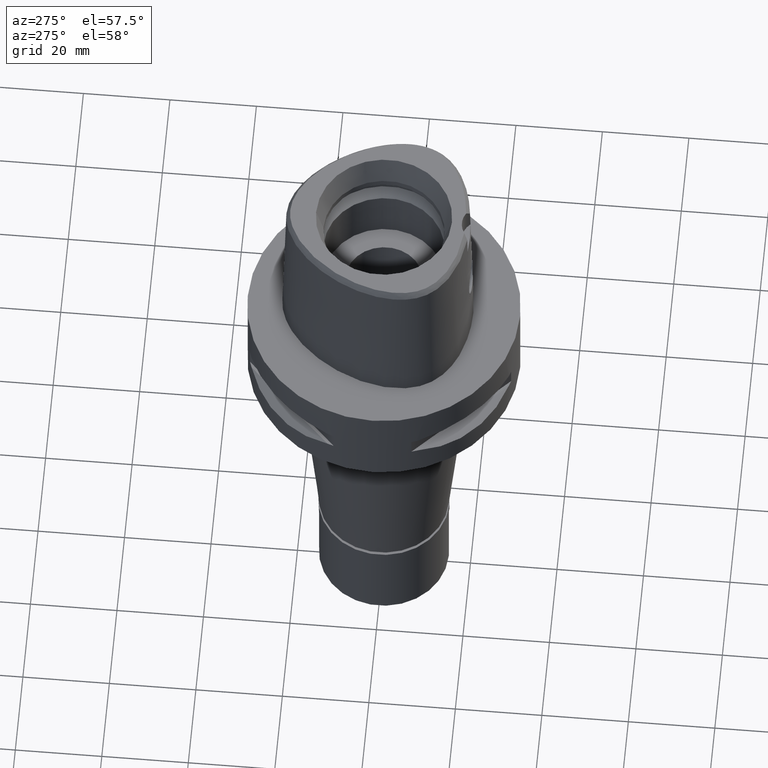
[diagram: clean part render]
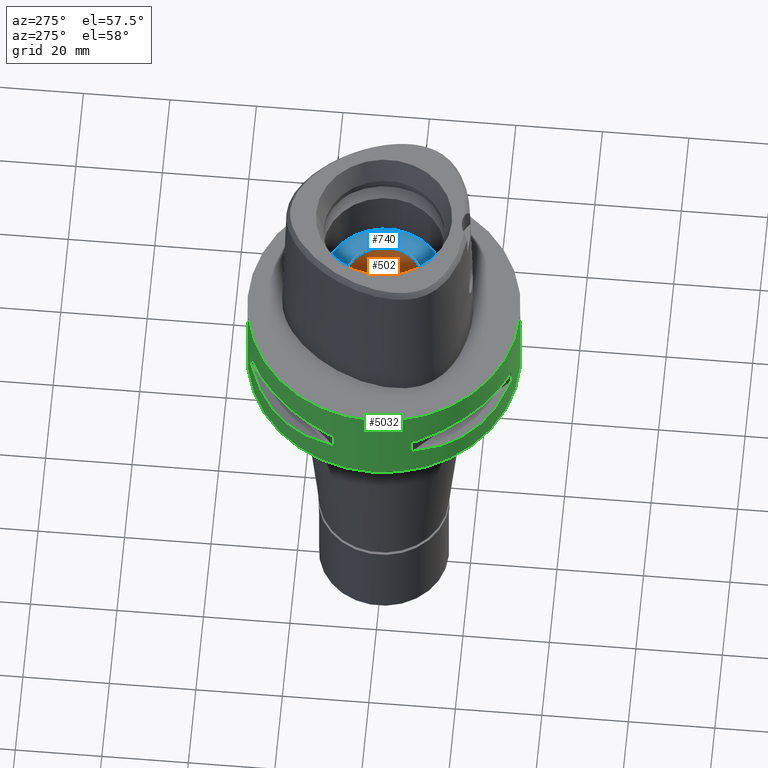
[diagram: same view with three faces highlighted in distinct colors, each labeled with its STEP entity id]
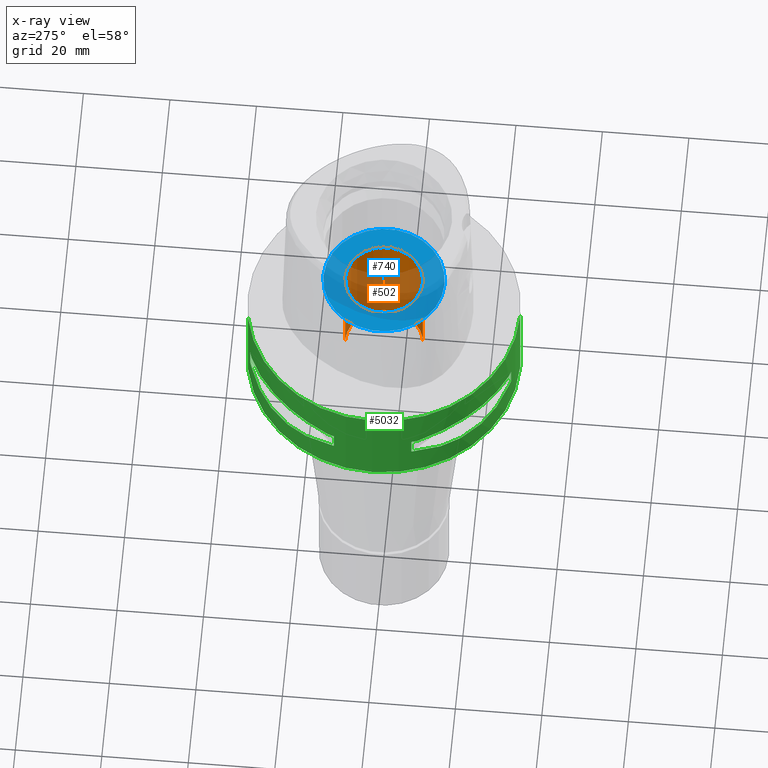
[diagram: x-ray of the same camera — body ghosted, the three highlighted faces saturated]
A machine part, auxiliary view with three faces highlighted in distinct colors.
The next image is the same camera in x-ray (body ghosted, the three faces saturated) — at least one of them is partly hidden behind the body in this view.
Their STEP definitions:

[orange] entity #502 — the highlighted cylindrical surface (partial cylindrical patch) has radius 9 mm, axis along (0, 0, -1).
#109 = EDGE_CURVE ( 'NONE', #375, #1393, #4360, .T. ) ;
#202 = CARTESIAN_POINT ( 'NONE',  ( 0.0000000000000000000, 0.0000000000000000000, 11.00000000000000000 ) ) ;
#315 = CARTESIAN_POINT ( 'NONE',  ( 0.0000000000000000000, 9.000000000000000000, 11.00000000000000000 ) ) ;
#375 = VERTEX_POINT ( 'NONE', #3069 ) ;
#502 = ADVANCED_FACE ( 'NONE', ( #4716 ), #1223, .F. ) ;
#642 = CIRCLE ( 'NONE', #1623, 9.000000000000000000 ) ;
#826 = DIRECTION ( 'NONE',  ( 0.0000000000000000000, -1.000000000000000000, 0.0000000000000000000 ) ) ;
#921 = VERTEX_POINT ( 'NONE', #1347 ) ;
#1010 = EDGE_CURVE ( 'NONE', #921, #4207, #1809, .T. ) ;
#1067 = DIRECTION ( 'NONE',  ( 0.0000000000000000000, 1.000000000000000000, 0.0000000000000000000 ) ) ;
#1223 = CYLINDRICAL_SURFACE ( 'NONE', #2659, 9.000000000000000000 ) ;
#1291 = VECTOR ( 'NONE', #2315, 1000.000000000000000 ) ;
#1343 = DIRECTION ( 'NONE',  ( 0.0000000000000000000, -1.000000000000000000, 0.0000000000000000000 ) ) ;
#1347 = CARTESIAN_POINT ( 'NONE',  ( 0.0000000000000000000, -9.000000000000000000, 11.00000000000000000 ) ) ;
#1393 = VERTEX_POINT ( 'NONE', #315 ) ;
#1623 = AXIS2_PLACEMENT_3D ( 'NONE', #1742, #2520, #1067 ) ;
#1735 = EDGE_CURVE ( 'NONE', #375, #4207, #642, .T. ) ;
#1742 = CARTESIAN_POINT ( 'NONE',  ( 0.0000000000000000000, 0.0000000000000000000, -16.00000000000000000 ) ) ;
#1756 = DIRECTION ( 'NONE',  ( 0.0000000000000000000, 0.0000000000000000000, 1.000000000000000000 ) ) ;
#1809 = LINE ( 'NONE', #3355, #2663 ) ;
#2102 = EDGE_LOOP ( 'NONE', ( #3231, #4526, #3614, #4425 ) ) ;
#2124 = CIRCLE ( 'NONE', #3629, 9.000000000000000000 ) ;
#2315 = DIRECTION ( 'NONE',  ( 0.0000000000000000000, 0.0000000000000000000, 1.000000000000000000 ) ) ;
#2520 = DIRECTION ( 'NONE',  ( 0.0000000000000000000, 0.0000000000000000000, -1.000000000000000000 ) ) ;
#2659 = AXIS2_PLACEMENT_3D ( 'NONE', #2763, #4331, #826 ) ;
#2663 = VECTOR ( 'NONE', #5039, 1000.000000000000000 ) ;
#2763 = CARTESIAN_POINT ( 'NONE',  ( 0.0000000000000000000, 0.0000000000000000000, 39.89999999999999858 ) ) ;
#3069 = CARTESIAN_POINT ( 'NONE',  ( 0.0000000000000000000, 9.000000000000000000, -16.00000000000000000 ) ) ;
#3099 = CARTESIAN_POINT ( 'NONE',  ( 0.0000000000000000000, 9.000000000000000000, -16.00000000000000000 ) ) ;
#3231 = ORIENTED_EDGE ( 'NONE', *, *, #4664, .T. ) ;
#3355 = CARTESIAN_POINT ( 'NONE',  ( 0.0000000000000000000, -9.000000000000000000, 11.00000000000000000 ) ) ;
#3614 = ORIENTED_EDGE ( 'NONE', *, *, #1735, .T. ) ;
#3629 = AXIS2_PLACEMENT_3D ( 'NONE', #202, #1756, #1343 ) ;
#4207 = VERTEX_POINT ( 'NONE', #4284 ) ;
#4284 = CARTESIAN_POINT ( 'NONE',  ( 0.0000000000000000000, -9.000000000000000000, -16.00000000000000000 ) ) ;
#4331 = DIRECTION ( 'NONE',  ( 0.0000000000000000000, 0.0000000000000000000, -1.000000000000000000 ) ) ;
#4360 = LINE ( 'NONE', #3099, #1291 ) ;
#4425 = ORIENTED_EDGE ( 'NONE', *, *, #1010, .F. ) ;
#4526 = ORIENTED_EDGE ( 'NONE', *, *, #109, .F. ) ;
#4664 = EDGE_CURVE ( 'NONE', #921, #1393, #2124, .T. ) ;
#4716 = FACE_OUTER_BOUND ( 'NONE', #2102, .T. ) ;
#5039 = DIRECTION ( 'NONE',  ( 0.0000000000000000000, 0.0000000000000000000, -1.000000000000000000 ) ) ;

[blue] entity #740 — the highlighted planar face has unit normal (0, 0, -1).
#51 = AXIS2_PLACEMENT_3D ( 'NONE', #2139, #1704, #1323 ) ;
#91 = ORIENTED_EDGE ( 'NONE', *, *, #2798, .F. ) ;
#202 = CARTESIAN_POINT ( 'NONE',  ( 0.0000000000000000000, 0.0000000000000000000, 11.00000000000000000 ) ) ;
#315 = CARTESIAN_POINT ( 'NONE',  ( 0.0000000000000000000, 9.000000000000000000, 11.00000000000000000 ) ) ;
#322 = EDGE_LOOP ( 'NONE', ( #91, #4742 ) ) ;
#341 = ORIENTED_EDGE ( 'NONE', *, *, #4664, .F. ) ;
#360 = DIRECTION ( 'NONE',  ( 0.0000000000000000000, 1.000000000000000000, 0.0000000000000000000 ) ) ;
#400 = CARTESIAN_POINT ( 'NONE',  ( 0.0000000000000000000, -14.00000000000000000, 11.00000000000000000 ) ) ;
#740 = ADVANCED_FACE ( 'NONE', ( #4462, #1375 ), #1423, .F. ) ;
#921 = VERTEX_POINT ( 'NONE', #1347 ) ;
#1027 = EDGE_LOOP ( 'NONE', ( #341, #4017 ) ) ;
#1084 = CARTESIAN_POINT ( 'NONE',  ( 0.0000000000000000000, 14.00000000000000000, 11.00000000000000000 ) ) ;
#1323 = DIRECTION ( 'NONE',  ( 0.0000000000000000000, -1.000000000000000000, 0.0000000000000000000 ) ) ;
#1340 = DIRECTION ( 'NONE',  ( 0.0000000000000000000, -1.000000000000000000, 0.0000000000000000000 ) ) ;
#1343 = DIRECTION ( 'NONE',  ( 0.0000000000000000000, -1.000000000000000000, 0.0000000000000000000 ) ) ;
#1347 = CARTESIAN_POINT ( 'NONE',  ( 0.0000000000000000000, -9.000000000000000000, 11.00000000000000000 ) ) ;
#1375 = FACE_BOUND ( 'NONE', #1027, .T. ) ;
#1393 = VERTEX_POINT ( 'NONE', #315 ) ;
#1412 = EDGE_CURVE ( 'NONE', #2737, #4189, #4484, .T. ) ;
#1423 = PLANE ( 'NONE',  #51 ) ;
#1704 = DIRECTION ( 'NONE',  ( 0.0000000000000000000, 0.0000000000000000000, -1.000000000000000000 ) ) ;
#1756 = DIRECTION ( 'NONE',  ( 0.0000000000000000000, 0.0000000000000000000, 1.000000000000000000 ) ) ;
#1804 = CIRCLE ( 'NONE', #5055, 14.00000000000000000 ) ;
#1857 = CARTESIAN_POINT ( 'NONE',  ( 0.0000000000000000000, 0.0000000000000000000, 11.00000000000000000 ) ) ;
#2019 = AXIS2_PLACEMENT_3D ( 'NONE', #3869, #4687, #360 ) ;
#2124 = CIRCLE ( 'NONE', #3629, 9.000000000000000000 ) ;
#2126 = CIRCLE ( 'NONE', #4713, 9.000000000000000000 ) ;
#2139 = CARTESIAN_POINT ( 'NONE',  ( 0.0000000000000000000, 0.0000000000000000000, 11.00000000000000000 ) ) ;
#2737 = VERTEX_POINT ( 'NONE', #1084 ) ;
#2798 = EDGE_CURVE ( 'NONE', #4189, #2737, #1804, .T. ) ;
#3025 = DIRECTION ( 'NONE',  ( 0.0000000000000000000, 0.0000000000000000000, 1.000000000000000000 ) ) ;
#3095 = DIRECTION ( 'NONE',  ( 0.0000000000000000000, 1.000000000000000000, 0.0000000000000000000 ) ) ;
#3343 = EDGE_CURVE ( 'NONE', #1393, #921, #2126, .T. ) ;
#3629 = AXIS2_PLACEMENT_3D ( 'NONE', #202, #1756, #1343 ) ;
#3738 = CARTESIAN_POINT ( 'NONE',  ( 0.0000000000000000000, 0.0000000000000000000, 11.00000000000000000 ) ) ;
#3869 = CARTESIAN_POINT ( 'NONE',  ( 0.0000000000000000000, 0.0000000000000000000, 11.00000000000000000 ) ) ;
#4017 = ORIENTED_EDGE ( 'NONE', *, *, #3343, .F. ) ;
#4189 = VERTEX_POINT ( 'NONE', #400 ) ;
#4462 = FACE_OUTER_BOUND ( 'NONE', #322, .T. ) ;
#4484 = CIRCLE ( 'NONE', #2019, 14.00000000000000000 ) ;
#4664 = EDGE_CURVE ( 'NONE', #921, #1393, #2124, .T. ) ;
#4687 = DIRECTION ( 'NONE',  ( 0.0000000000000000000, 0.0000000000000000000, -1.000000000000000000 ) ) ;
#4713 = AXIS2_PLACEMENT_3D ( 'NONE', #1857, #3025, #3095 ) ;
#4742 = ORIENTED_EDGE ( 'NONE', *, *, #1412, .F. ) ;
#4814 = DIRECTION ( 'NONE',  ( 0.0000000000000000000, 0.0000000000000000000, -1.000000000000000000 ) ) ;
#5055 = AXIS2_PLACEMENT_3D ( 'NONE', #3738, #4814, #1340 ) ;

[green] entity #5032 — the highlighted cylindrical surface (partial cylindrical patch) has radius 31.5 mm, axis along (0, 0, -1).
#10 = CARTESIAN_POINT ( 'NONE',  ( -20.18579225686149314, -24.23018836745477245, -15.78559396979075125 ) ) ;
#18 = CARTESIAN_POINT ( 'NONE',  ( -25.43927894891815811, 18.59229662064788258, -15.62866126334327710 ) ) ;
#47 = DIRECTION ( 'NONE',  ( 0.0000000000000000000, 0.0000000000000000000, -1.000000000000000000 ) ) ;
#50 = AXIS2_PLACEMENT_3D ( 'NONE', #3271, #2181, #176 ) ;
#95 = CARTESIAN_POINT ( 'NONE',  ( 0.0000000000000000000, 0.0000000000000000000, 0.0000000000000000000 ) ) ;
#131 = VECTOR ( 'NONE', #636, 1000.000000000000000 ) ;
#139 = VECTOR ( 'NONE', #4001, 1000.000000000000000 ) ;
#176 = DIRECTION ( 'NONE',  ( -0.3316748332540863653, -0.9433937698468619626, 0.0000000000000000000 ) ) ;
#197 = VERTEX_POINT ( 'NONE', #3954 ) ;
#209 = DIRECTION ( 'NONE',  ( 0.0000000000000000000, 0.0000000000000000000, 1.000000000000000000 ) ) ;
#248 = EDGE_CURVE ( 'NONE', #1753, #4398, #4186, .T. ) ;
#328 = CARTESIAN_POINT ( 'NONE',  ( -8.981198972019999616, 30.19251670572000279, -9.950000000000001066 ) ) ;
#346 = CARTESIAN_POINT ( 'NONE',  ( -21.46242677078074834, -23.08532645888130830, -15.83938991065315172 ) ) ;
#350 = CARTESIAN_POINT ( 'NONE',  ( -10.44775724750000023, 29.71690375017999841, -14.05000000000000071 ) ) ;
#373 = CARTESIAN_POINT ( 'NONE',  ( -26.58330558444475145, -16.89910283486517528, -15.40446471307230070 ) ) ;
#383 = AXIS2_PLACEMENT_3D ( 'NONE', #3301, #1404, #2866 ) ;
#384 = CARTESIAN_POINT ( 'NONE',  ( -27.88210502977326755, 14.84430321591229074, -8.906184731931707788 ) ) ;
#403 = ORIENTED_EDGE ( 'NONE', *, *, #1530, .F. ) ;
#464 = EDGE_CURVE ( 'NONE', #1253, #3027, #3330, .T. ) ;
#477 = ORIENTED_EDGE ( 'NONE', *, *, #1015, .T. ) ;
#486 = ORIENTED_EDGE ( 'NONE', *, *, #1839, .T. ) ;
#493 = CARTESIAN_POINT ( 'NONE',  ( -10.44775724750000023, 29.71690375017999841, -14.05000000000000071 ) ) ;
#578 = DIRECTION ( 'NONE',  ( -0.9584925938322735872, -0.2851174276831918153, 0.0000000000000000000 ) ) ;
#589 = ORIENTED_EDGE ( 'NONE', *, *, #2254, .T. ) ;
#617 = AXIS2_PLACEMENT_3D ( 'NONE', #4661, #4196, #1087 ) ;
#629 = CARTESIAN_POINT ( 'NONE',  ( 0.0000000000000000000, 0.0000000000000000000, -14.05000000000000071 ) ) ;
#636 = DIRECTION ( 'NONE',  ( 0.0000000000000000000, 0.0000000000000000000, -1.000000000000000000 ) ) ;
#661 = ORIENTED_EDGE ( 'NONE', *, *, #2030, .T. ) ;
#719 = CARTESIAN_POINT ( 'NONE',  ( -23.90617837140505841, 20.64154884334742590, -8.160613588441446353 ) ) ;
#722 = CARTESIAN_POINT ( 'NONE',  ( 0.0000000000000000000, 0.0000000000000000000, -14.05000000000000071 ) ) ;
#749 = CARTESIAN_POINT ( 'NONE',  ( -30.19251670572000279, 8.981198972017999438, -14.05000000000000071 ) ) ;
#758 = CARTESIAN_POINT ( 'NONE',  ( -10.44775724750000023, -29.71690375017999841, -9.949999999998999201 ) ) ;
#780 = CARTESIAN_POINT ( 'NONE',  ( -26.84474411198545596, -16.48208282229538213, -15.34094883778132790 ) ) ;
#788 = CARTESIAN_POINT ( 'NONE',  ( -27.86285265926610322, 14.89252659057099493, -15.10765629751760031 ) ) ;
#793 = CARTESIAN_POINT ( 'NONE',  ( -20.64154884334743656, 23.90617837140505486, -8.160627831333194138 ) ) ;
#812 = ORIENTED_EDGE ( 'NONE', *, *, #248, .F. ) ;
#818 = DIRECTION ( 'NONE',  ( 0.0000000000000000000, 0.0000000000000000000, -1.000000000000000000 ) ) ;
#845 = CARTESIAN_POINT ( 'NONE',  ( 0.0000000000000000000, 31.50000000000000000, 0.0000000000000000000 ) ) ;
#887 = VERTEX_POINT ( 'NONE', #2186 ) ;
#901 = CARTESIAN_POINT ( 'NONE',  ( -26.48642424310478205, 17.05047092244226903, -15.42670883407652305 ) ) ;
#907 = EDGE_CURVE ( 'NONE', #1098, #3177, #3749, .T. ) ;
#923 = ORIENTED_EDGE ( 'NONE', *, *, #3782, .T. ) ;
#973 = CIRCLE ( 'NONE', #50, 31.50000000000000711 ) ;
#981 = B_SPLINE_CURVE_WITH_KNOTS ( 'NONE', 3,
 ( #4986, #2694, #2296, #1892, #3030, #780, #1509, #1962, #3055, #373, #3511, #3858, #346, #10, #1127, #1586, #1199, #2743, #5036, #4313, #3466, #1538, #1940, #3080 ),
 .UNSPECIFIED., .F., .F.,
 ( 4, 1, 1, 1, 1, 1, 2, 2, 2, 1, 1, 1, 1, 1, 2, 2, 4 ),
 ( 0.0000000000000000000, 0.1249999999999912292, 0.1874999999999869826, 0.2187499999999850120, 0.2343749999999839295, 0.2421874999999835409, 0.2460937499999835687, 0.2499999999999836242, 0.4999999999999924505, 0.6249999999999968914, 0.6874999999999992228, 0.7187500000000003331, 0.7343750000000009992, 0.7421875000000014433, 0.7460937500000016653, 0.7500000000000019984, 1.000000000000000000 ),
 .UNSPECIFIED. ) ;
#1015 = EDGE_CURVE ( 'NONE', #3047, #4315, #3244, .T. ) ;
#1087 = DIRECTION ( 'NONE',  ( 0.0000000000000000000, -1.000000000000000000, 0.0000000000000000000 ) ) ;
#1098 = VERTEX_POINT ( 'NONE', #328 ) ;
#1106 = CARTESIAN_POINT ( 'NONE',  ( -10.44775724750000023, -29.71690375017999841, -14.05000000000000071 ) ) ;
#1107 = CYLINDRICAL_SURFACE ( 'NONE', #617, 31.50000000000000000 ) ;
#1127 = CARTESIAN_POINT ( 'NONE',  ( -18.59229662065117594, -25.43927894891756125, -15.62866126334438732 ) ) ;
#1137 = VECTOR ( 'NONE', #3251, 1000.000000000000000 ) ;
#1169 = VERTEX_POINT ( 'NONE', #1845 ) ;
#1178 = LINE ( 'NONE', #2232, #1716 ) ;
#1199 = CARTESIAN_POINT ( 'NONE',  ( -17.35163608579770766, -26.29071741523690875, -15.46976201925451022 ) ) ;
#1206 = CARTESIAN_POINT ( 'NONE',  ( -16.86571563436660171, 26.60451452154748608, -15.39949295786010097 ) ) ;
#1253 = VERTEX_POINT ( 'NONE', #3514 ) ;
#1299 = VECTOR ( 'NONE', #3768, 1000.000000000000000 ) ;
#1318 = CARTESIAN_POINT ( 'NONE',  ( -16.89910283486523923, 26.58330558444462355, -15.40446471307224741 ) ) ;
#1328 = LINE ( 'NONE', #3676, #139 ) ;
#1389 = AXIS2_PLACEMENT_3D ( 'NONE', #629, #3381, #3361 ) ;
#1404 = DIRECTION ( 'NONE',  ( 0.0000000000000000000, 0.0000000000000000000, 1.000000000000000000 ) ) ;
#1482 = CARTESIAN_POINT ( 'NONE',  ( -10.44775724750000023, 29.71690375017999841, -9.949999999998999201 ) ) ;
#1509 = CARTESIAN_POINT ( 'NONE',  ( -26.70521063584408950, -16.70616724746141202, -15.37546661817775373 ) ) ;
#1530 = EDGE_CURVE ( 'NONE', #3047, #2642, #1328, .T. ) ;
#1538 = CARTESIAN_POINT ( 'NONE',  ( -14.89252659056261052, -27.86285265926905197, -15.10765629751539230 ) ) ;
#1546 = CARTESIAN_POINT ( 'NONE',  ( -13.25636937904505785, 28.62019653468586355, -14.74888225541535292 ) ) ;
#1557 = DIRECTION ( 'NONE',  ( 0.0000000000000000000, 0.0000000000000000000, 1.000000000000000000 ) ) ;
#1586 = CARTESIAN_POINT ( 'NONE',  ( -17.76952662671988392, -26.01217882834739470, -15.52665221626113912 ) ) ;
#1615 = CARTESIAN_POINT ( 'NONE',  ( -26.01217882834774997, 17.76952662671796901, -15.52665221626049608 ) ) ;
#1620 = LINE ( 'NONE', #845, #1137 ) ;
#1642 = CARTESIAN_POINT ( 'NONE',  ( -16.70616724745912407, 26.70521063584489596, -15.37546661817712490 ) ) ;
#1698 = EDGE_LOOP ( 'NONE', ( #923, #2242, #3347, #589 ) ) ;
#1716 = VECTOR ( 'NONE', #2282, 1000.000000000000000 ) ;
#1753 = VERTEX_POINT ( 'NONE', #2217 ) ;
#1761 = CARTESIAN_POINT ( 'NONE',  ( -8.981198972017999438, -30.19251670572000279, -9.950000000000001066 ) ) ;
#1828 = CARTESIAN_POINT ( 'NONE',  ( 0.0000000000000000000, 0.0000000000000000000, -9.950000000000001066 ) ) ;
#1839 = EDGE_CURVE ( 'NONE', #3718, #3928, #2120, .T. ) ;
#1845 = CARTESIAN_POINT ( 'NONE',  ( 0.0000000000000000000, 31.50000000000000000, 0.0000000000000000000 ) ) ;
#1856 = CARTESIAN_POINT ( 'NONE',  ( -30.19251670572000279, -8.981198972017999438, -9.950000000000001066 ) ) ;
#1874 = FACE_BOUND ( 'NONE', #3596, .T. ) ;
#1892 = CARTESIAN_POINT ( 'NONE',  ( -27.64634172017658642, -15.11986997311774417, -15.11207862404057423 ) ) ;
#1893 = B_SPLINE_CURVE_WITH_KNOTS ( 'NONE', 3,
 ( #3501, #5067, #3040, #2021, #2757, #2779, #2429, #3222, #4732, #4350 ),
 .UNSPECIFIED., .F., .F.,
 ( 4, 2, 2, 2, 4 ),
 ( 0.0000000000000000000, 0.2500000000000000000, 0.5000000000000000000, 0.7500000000000000000, 1.000000000000000000 ),
 .UNSPECIFIED. ) ;
#1918 = DIRECTION ( 'NONE',  ( -0.2851174276831918153, -0.9584925938322735872, 0.0000000000000000000 ) ) ;
#1940 = CARTESIAN_POINT ( 'NONE',  ( -12.73197616787212993, -28.91382665369246752, -14.65467361753630549 ) ) ;
#1962 = CARTESIAN_POINT ( 'NONE',  ( -26.64486562695712379, -16.80193241490734835, -15.38992683735741451 ) ) ;
#1988 = VERTEX_POINT ( 'NONE', #3064 ) ;
#2002 = DIRECTION ( 'NONE',  ( -0.9433937698468619626, 0.3316748332540863653, 0.0000000000000000000 ) ) ;
#2015 = CARTESIAN_POINT ( 'NONE',  ( -26.29071741523710060, 17.35163608579668804, -15.46976201925415317 ) ) ;
#2021 = CARTESIAN_POINT ( 'NONE',  ( -25.37277178176733372, -18.81455742151813482, -8.309746333162701504 ) ) ;
#2030 = EDGE_CURVE ( 'NONE', #3177, #1253, #2148, .T. ) ;
#2049 = CARTESIAN_POINT ( 'NONE',  ( -18.86897208075099996, 25.32725744466366891, -15.69588095933659488 ) ) ;
#2055 = CARTESIAN_POINT ( 'NONE',  ( 0.0000000000000000000, 31.50000000000000000, -22.00000000000000000 ) ) ;
#2099 = EDGE_CURVE ( 'NONE', #4984, #4341, #1893, .T. ) ;
#2109 = CARTESIAN_POINT ( 'NONE',  ( 0.0000000000000000000, 0.0000000000000000000, -22.00000000000000000 ) ) ;
#2120 = CIRCLE ( 'NONE', #1389, 31.50000000000000711 ) ;
#2129 = VERTEX_POINT ( 'NONE', #4326 ) ;
#2148 = B_SPLINE_CURVE_WITH_KNOTS ( 'NONE', 3,
 ( #3865, #4294, #4588, #5021, #793, #719, #2632, #384, #4249, #2654 ),
 .UNSPECIFIED., .F., .F.,
 ( 4, 2, 2, 2, 4 ),
 ( 0.0000000000000000000, 0.2500000000000000000, 0.5000000000000000000, 0.7500000000000000000, 1.000000000000000000 ),
 .UNSPECIFIED. ) ;
#2181 = DIRECTION ( 'NONE',  ( 0.0000000000000000000, 0.0000000000000000000, 1.000000000000000000 ) ) ;
#2186 = CARTESIAN_POINT ( 'NONE',  ( 0.0000000000000000000, -31.50000000000000000, -22.00000000000000000 ) ) ;
#2217 = CARTESIAN_POINT ( 'NONE',  ( -30.19251670572000279, -8.981198972019999616, -9.950000000000001066 ) ) ;
#2232 = CARTESIAN_POINT ( 'NONE',  ( -8.981198972017999438, 30.19251670572000279, -9.950000000000001066 ) ) ;
#2242 = ORIENTED_EDGE ( 'NONE', *, *, #3764, .F. ) ;
#2254 = EDGE_CURVE ( 'NONE', #1169, #3763, #1620, .T. ) ;
#2282 = DIRECTION ( 'NONE',  ( 0.0000000000000000000, 0.0000000000000000000, -1.000000000000000000 ) ) ;
#2296 = CARTESIAN_POINT ( 'NONE',  ( -28.62019653467925551, -13.25636937906381974, -14.74888225542034448 ) ) ;
#2353 = FACE_OUTER_BOUND ( 'NONE', #1698, .T. ) ;
#2366 = ORIENTED_EDGE ( 'NONE', *, *, #4025, .F. ) ;
#2373 = CARTESIAN_POINT ( 'NONE',  ( -26.52527364208594562, 16.98999780422062500, -15.41788098766312487 ) ) ;
#2381 = CARTESIAN_POINT ( 'NONE',  ( 0.0000000000000000000, 0.0000000000000000000, -9.950000000000001066 ) ) ;
#2426 = AXIS2_PLACEMENT_3D ( 'NONE', #3743, #4075, #2484 ) ;
#2429 = CARTESIAN_POINT ( 'NONE',  ( -18.81462633043446075, -25.37272068390329238, -8.309724968561150504 ) ) ;
#2455 = CARTESIAN_POINT ( 'NONE',  ( -26.42800887047543767, 17.14106442934696162, -15.43984550238475251 ) ) ;
#2456 = ORIENTED_EDGE ( 'NONE', *, *, #4479, .F. ) ;
#2484 = DIRECTION ( 'NONE',  ( -0.9433937698468619626, -0.3316748332540863653, 0.0000000000000000000 ) ) ;
#2511 = DIRECTION ( 'NONE',  ( 0.0000000000000000000, 0.0000000000000000000, 1.000000000000000000 ) ) ;
#2526 = AXIS2_PLACEMENT_3D ( 'NONE', #95, #818, #3631 ) ;
#2623 = ORIENTED_EDGE ( 'NONE', *, *, #4909, .T. ) ;
#2632 = CARTESIAN_POINT ( 'NONE',  ( -25.37272068390328172, 18.81462633043448207, -8.309724968561150504 ) ) ;
#2642 = VERTEX_POINT ( 'NONE', #1761 ) ;
#2654 = CARTESIAN_POINT ( 'NONE',  ( -29.71690375017999841, 10.44775724750000023, -9.949999999998999201 ) ) ;
#2694 = CARTESIAN_POINT ( 'NONE',  ( -29.31542262584164504, -11.58970337495982328, -14.35229357167352049 ) ) ;
#2743 = CARTESIAN_POINT ( 'NONE',  ( -17.14106442934748742, -26.42800887047532754, -15.43984550238493547 ) ) ;
#2751 = CARTESIAN_POINT ( 'NONE',  ( -24.23018836745557181, 20.18579225685711265, -15.78559396978928397 ) ) ;
#2757 = CARTESIAN_POINT ( 'NONE',  ( -23.90617837140505841, -20.64154884334743301, -8.160627831333194138 ) ) ;
#2779 = CARTESIAN_POINT ( 'NONE',  ( -20.64154884334741169, -23.90617837140507618, -8.160613588441446353 ) ) ;
#2830 = CARTESIAN_POINT ( 'NONE',  ( -23.08532645888177015, 21.46242677077824368, -15.83938991065229196 ) ) ;
#2853 = ORIENTED_EDGE ( 'NONE', *, *, #907, .T. ) ;
#2866 = DIRECTION ( 'NONE',  ( -0.2851174276831918153, 0.9584925938322735872, 0.0000000000000000000 ) ) ;
#2881 = EDGE_LOOP ( 'NONE', ( #3482, #2366, #4547, #2456, #486, #3873, #2853, #661 ) ) ;
#2922 = AXIS2_PLACEMENT_3D ( 'NONE', #4657, #4264, #1918 ) ;
#2943 = DIRECTION ( 'NONE',  ( 0.0000000000000000000, 1.000000000000000000, 0.0000000000000000000 ) ) ;
#3018 = EDGE_CURVE ( 'NONE', #4341, #2642, #973, .T. ) ;
#3027 = VERTEX_POINT ( 'NONE', #3351 ) ;
#3030 = CARTESIAN_POINT ( 'NONE',  ( -27.11872488588860008, -16.03138450079452682, -15.26880420107959146 ) ) ;
#3040 = CARTESIAN_POINT ( 'NONE',  ( -27.88214534477230089, -14.84422749186512291, -8.906206096533262340 ) ) ;
#3047 = VERTEX_POINT ( 'NONE', #4172 ) ;
#3055 = CARTESIAN_POINT ( 'NONE',  ( -26.60451452154724805, -16.86571563436727317, -15.39949295786030348 ) ) ;
#3064 = CARTESIAN_POINT ( 'NONE',  ( -29.71690375017999841, 10.44775724750000023, -14.05000000000000071 ) ) ;
#3080 = CARTESIAN_POINT ( 'NONE',  ( -10.44775724750000023, -29.71690375017999841, -14.05000000000000071 ) ) ;
#3087 = CARTESIAN_POINT ( 'NONE',  ( -15.11986997310366299, 27.64634172018154246, -15.11207862403683144 ) ) ;
#3121 = ORIENTED_EDGE ( 'NONE', *, *, #3018, .T. ) ;
#3161 = CARTESIAN_POINT ( 'NONE',  ( -16.80193241490601253, 26.64486562695759631, -15.38992683735703437 ) ) ;
#3177 = VERTEX_POINT ( 'NONE', #1482 ) ;
#3222 = CARTESIAN_POINT ( 'NONE',  ( -14.84430321591224988, -27.88210502977329597, -8.906184731931707788 ) ) ;
#3225 = CARTESIAN_POINT ( 'NONE',  ( 0.0000000000000000000, -31.50000000000000000, 0.0000000000000000000 ) ) ;
#3244 = CIRCLE ( 'NONE', #2922, 31.50000000000001776 ) ;
#3251 = DIRECTION ( 'NONE',  ( 0.0000000000000000000, 0.0000000000000000000, -1.000000000000000000 ) ) ;
#3252 = CIRCLE ( 'NONE', #2526, 31.50000000000000000 ) ;
#3271 = CARTESIAN_POINT ( 'NONE',  ( 0.0000000000000000000, 0.0000000000000000000, -9.950000000000001066 ) ) ;
#3286 = B_SPLINE_CURVE_WITH_KNOTS ( 'NONE', 3,
 ( #350, #5042, #1546, #3087, #4660, #4817, #1642, #3161, #1206, #1318, #2049, #3519, #2830, #2751, #18, #1615, #2015, #2455, #901, #2373, #4729, #788, #4401, #4782 ),
 .UNSPECIFIED., .F., .F.,
 ( 4, 1, 1, 1, 1, 1, 2, 2, 2, 1, 1, 1, 1, 1, 2, 2, 4 ),
 ( 0.0000000000000000000, 0.1249999999999917843, 0.1874999999999877320, 0.2187499999999857059, 0.2343749999999849287, 0.2421874999999843736, 0.2460937499999842071, 0.2499999999999840128, 0.4999999999999846789, 0.6249999999999850120, 0.6874999999999850120, 0.7187499999999851230, 0.7343749999999852340, 0.7421874999999852340, 0.7460937499999851230, 0.7499999999999851230, 1.000000000000000000 ),
 .UNSPECIFIED. ) ;
#3301 = CARTESIAN_POINT ( 'NONE',  ( 0.0000000000000000000, 0.0000000000000000000, -9.950000000000001066 ) ) ;
#3330 = CIRCLE ( 'NONE', #5041, 31.50000000000000711 ) ;
#3347 = ORIENTED_EDGE ( 'NONE', *, *, #4559, .T. ) ;
#3351 = CARTESIAN_POINT ( 'NONE',  ( -30.19251670572000279, 8.981198972017999438, -9.950000000000001066 ) ) ;
#3361 = DIRECTION ( 'NONE',  ( -0.3316748332540863653, 0.9433937698468619626, 0.0000000000000000000 ) ) ;
#3368 = ORIENTED_EDGE ( 'NONE', *, *, #4209, .F. ) ;
#3381 = DIRECTION ( 'NONE',  ( 0.0000000000000000000, 0.0000000000000000000, -1.000000000000000000 ) ) ;
#3427 = CARTESIAN_POINT ( 'NONE',  ( -29.71690375017999841, -10.44775724750000023, -14.05000000000000071 ) ) ;
#3450 = CARTESIAN_POINT ( 'NONE',  ( -29.71690375017999841, -10.44775724750000023, -9.949999999998999201 ) ) ;
#3466 = CARTESIAN_POINT ( 'NONE',  ( -16.96123479564944247, -26.54368690921640450, -15.41365572341321766 ) ) ;
#3482 = ORIENTED_EDGE ( 'NONE', *, *, #464, .T. ) ;
#3484 = CIRCLE ( 'NONE', #2426, 31.50000000000000711 ) ;
#3501 = CARTESIAN_POINT ( 'NONE',  ( -29.71690375017999841, -10.44775724750000023, -9.949999999998999201 ) ) ;
#3511 = CARTESIAN_POINT ( 'NONE',  ( -25.32725744465475515, -18.86897208075581034, -15.69588095933493932 ) ) ;
#3514 = CARTESIAN_POINT ( 'NONE',  ( -29.71690375017999841, 10.44775724750000023, -9.949999999998999201 ) ) ;
#3518 = EDGE_CURVE ( 'NONE', #2129, #1988, #3665, .T. ) ;
#3519 = CARTESIAN_POINT ( 'NONE',  ( -20.65093790435489396, 23.89673728056195756, -15.83935804901932087 ) ) ;
#3596 = EDGE_LOOP ( 'NONE', ( #3121, #403, #477, #3368, #3663, #812, #2623, #3710 ) ) ;
#3631 = DIRECTION ( 'NONE',  ( 0.0000000000000000000, -1.000000000000000000, 0.0000000000000000000 ) ) ;
#3663 = ORIENTED_EDGE ( 'NONE', *, *, #3870, .T. ) ;
#3665 = CIRCLE ( 'NONE', #4223, 31.50000000000001776 ) ;
#3676 = CARTESIAN_POINT ( 'NONE',  ( -8.981198972017999438, -30.19251670572000279, -14.05000000000000071 ) ) ;
#3710 = ORIENTED_EDGE ( 'NONE', *, *, #2099, .T. ) ;
#3718 = VERTEX_POINT ( 'NONE', #493 ) ;
#3743 = CARTESIAN_POINT ( 'NONE',  ( 0.0000000000000000000, 0.0000000000000000000, -14.05000000000000071 ) ) ;
#3747 = AXIS2_PLACEMENT_3D ( 'NONE', #2109, #2511, #2943 ) ;
#3749 = CIRCLE ( 'NONE', #383, 31.50000000000001776 ) ;
#3763 = VERTEX_POINT ( 'NONE', #2055 ) ;
#3764 = EDGE_CURVE ( 'NONE', #197, #887, #4790, .T. ) ;
#3768 = DIRECTION ( 'NONE',  ( 0.0000000000000000000, 0.0000000000000000000, 1.000000000000000000 ) ) ;
#3782 = EDGE_CURVE ( 'NONE', #3763, #887, #3978, .T. ) ;
#3798 = DIRECTION ( 'NONE',  ( -0.9584925938322735872, 0.2851174276831918153, 0.0000000000000000000 ) ) ;
#3858 = CARTESIAN_POINT ( 'NONE',  ( -23.89673728055697310, -20.65093790435582122, -15.83935804901768307 ) ) ;
#3865 = CARTESIAN_POINT ( 'NONE',  ( -10.44775724750000023, 29.71690375017999841, -9.949999999998999201 ) ) ;
#3870 = EDGE_CURVE ( 'NONE', #4433, #4398, #3484, .T. ) ;
#3873 = ORIENTED_EDGE ( 'NONE', *, *, #4406, .F. ) ;
#3874 = LINE ( 'NONE', #749, #1299 ) ;
#3928 = VERTEX_POINT ( 'NONE', #4045 ) ;
#3954 = CARTESIAN_POINT ( 'NONE',  ( 0.0000000000000000000, -31.50000000000000000, 0.0000000000000000000 ) ) ;
#3978 = CIRCLE ( 'NONE', #3747, 31.50000000000000000 ) ;
#4001 = DIRECTION ( 'NONE',  ( 0.0000000000000000000, 0.0000000000000000000, 1.000000000000000000 ) ) ;
#4025 = EDGE_CURVE ( 'NONE', #2129, #3027, #3874, .T. ) ;
#4045 = CARTESIAN_POINT ( 'NONE',  ( -8.981198972017999438, 30.19251670572000279, -14.05000000000000071 ) ) ;
#4075 = DIRECTION ( 'NONE',  ( 0.0000000000000000000, 0.0000000000000000000, -1.000000000000000000 ) ) ;
#4172 = CARTESIAN_POINT ( 'NONE',  ( -8.981198972019999616, -30.19251670572000279, -14.05000000000000071 ) ) ;
#4186 = LINE ( 'NONE', #1856, #131 ) ;
#4196 = DIRECTION ( 'NONE',  ( 0.0000000000000000000, 0.0000000000000000000, -1.000000000000000000 ) ) ;
#4209 = EDGE_CURVE ( 'NONE', #4433, #4315, #981, .T. ) ;
#4223 = AXIS2_PLACEMENT_3D ( 'NONE', #722, #4975, #3798 ) ;
#4249 = CARTESIAN_POINT ( 'NONE',  ( -28.92472615202279584, 12.70097436192365947, -9.353533115182571578 ) ) ;
#4264 = DIRECTION ( 'NONE',  ( 0.0000000000000000000, 0.0000000000000000000, -1.000000000000000000 ) ) ;
#4294 = CARTESIAN_POINT ( 'NONE',  ( -12.70092055722009761, 28.92474506847809579, -9.353547358250267507 ) ) ;
#4313 = CARTESIAN_POINT ( 'NONE',  ( -16.98999780422078132, -26.52527364208593141, -15.41788098766319060 ) ) ;
#4315 = VERTEX_POINT ( 'NONE', #1106 ) ;
#4326 = CARTESIAN_POINT ( 'NONE',  ( -30.19251670572000279, 8.981198972019999616, -14.05000000000000071 ) ) ;
#4341 = VERTEX_POINT ( 'NONE', #758 ) ;
#4350 = CARTESIAN_POINT ( 'NONE',  ( -10.44775724750000023, -29.71690375017999841, -9.949999999998999201 ) ) ;
#4398 = VERTEX_POINT ( 'NONE', #4678 ) ;
#4401 = CARTESIAN_POINT ( 'NONE',  ( -28.91382665368951876, 12.73197616788052500, -14.65467361753852060 ) ) ;
#4406 = EDGE_CURVE ( 'NONE', #1098, #3928, #1178, .T. ) ;
#4433 = VERTEX_POINT ( 'NONE', #3427 ) ;
#4479 = EDGE_CURVE ( 'NONE', #3718, #1988, #3286, .T. ) ;
#4547 = ORIENTED_EDGE ( 'NONE', *, *, #3518, .T. ) ;
#4559 = EDGE_CURVE ( 'NONE', #197, #1169, #3252, .T. ) ;
#4585 = FACE_BOUND ( 'NONE', #2881, .T. ) ;
#4588 = CARTESIAN_POINT ( 'NONE',  ( -14.84422749186513713, 27.88214534477229023, -8.906206096533262340 ) ) ;
#4657 = CARTESIAN_POINT ( 'NONE',  ( 0.0000000000000000000, 0.0000000000000000000, -14.05000000000000071 ) ) ;
#4660 = CARTESIAN_POINT ( 'NONE',  ( -16.03138450078630584, 27.11872488589149199, -15.26880420107739234 ) ) ;
#4661 = CARTESIAN_POINT ( 'NONE',  ( 0.0000000000000000000, 0.0000000000000000000, 4.915000000000000036 ) ) ;
#4678 = CARTESIAN_POINT ( 'NONE',  ( -30.19251670572000279, -8.981198972017999438, -14.05000000000000071 ) ) ;
#4691 = AXIS2_PLACEMENT_3D ( 'NONE', #1828, #209, #578 ) ;
#4729 = CARTESIAN_POINT ( 'NONE',  ( -26.54368690921645069, 16.96123479564930747, -15.41365572341317147 ) ) ;
#4732 = CARTESIAN_POINT ( 'NONE',  ( -12.70097436192363283, -28.92472615202281006, -9.353533115182571578 ) ) ;
#4771 = CIRCLE ( 'NONE', #4691, 31.50000000000001776 ) ;
#4782 = CARTESIAN_POINT ( 'NONE',  ( -29.71690375017999841, 10.44775724750000023, -14.05000000000000071 ) ) ;
#4790 = LINE ( 'NONE', #3225, #4964 ) ;
#4817 = CARTESIAN_POINT ( 'NONE',  ( -16.48208282229096611, 26.84474411198699784, -15.34094883778013596 ) ) ;
#4909 = EDGE_CURVE ( 'NONE', #1753, #4984, #4771, .T. ) ;
#4964 = VECTOR ( 'NONE', #47, 1000.000000000000000 ) ;
#4975 = DIRECTION ( 'NONE',  ( 0.0000000000000000000, 0.0000000000000000000, -1.000000000000000000 ) ) ;
#4984 = VERTEX_POINT ( 'NONE', #3450 ) ;
#4986 = CARTESIAN_POINT ( 'NONE',  ( -29.71690375017999841, -10.44775724750000023, -14.05000000000000071 ) ) ;
#5021 = CARTESIAN_POINT ( 'NONE',  ( -18.81455742151813837, 25.37277178176731951, -8.309746333162701504 ) ) ;
#5032 = ADVANCED_FACE ( 'NONE', ( #2353, #4585, #1874 ), #1107, .T. ) ;
#5036 = CARTESIAN_POINT ( 'NONE',  ( -17.05047092244258522, -26.48642424310472876, -15.42670883407663496 ) ) ;
#5041 = AXIS2_PLACEMENT_3D ( 'NONE', #2381, #1557, #2002 ) ;
#5042 = CARTESIAN_POINT ( 'NONE',  ( -11.58970337494912251, 29.31542262584540737, -14.35229357167066233 ) ) ;
#5067 = CARTESIAN_POINT ( 'NONE',  ( -28.92474506847811000, -12.70092055722007629, -9.353547358250267507 ) ) ;